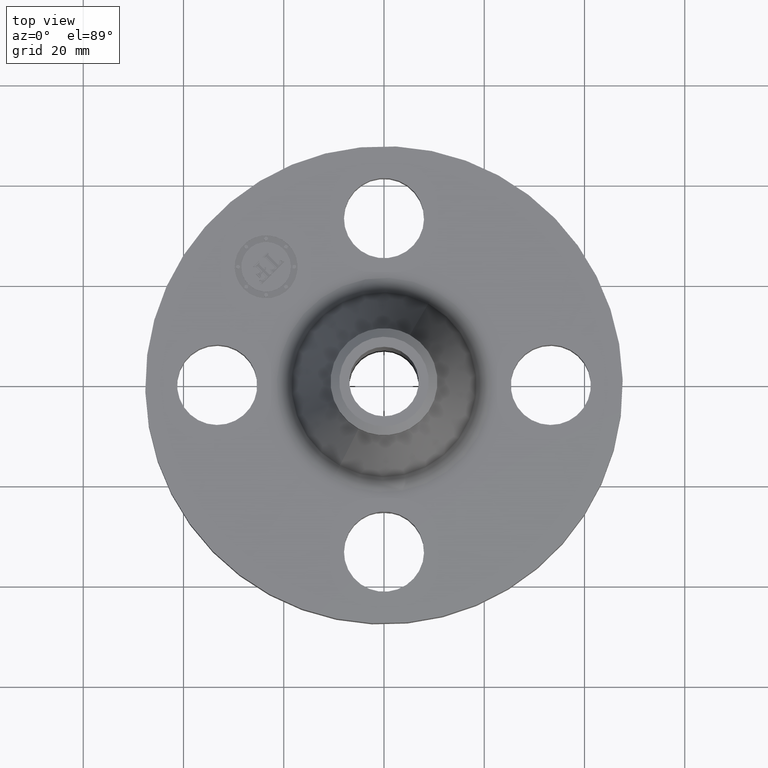
[diagram: clean part render]
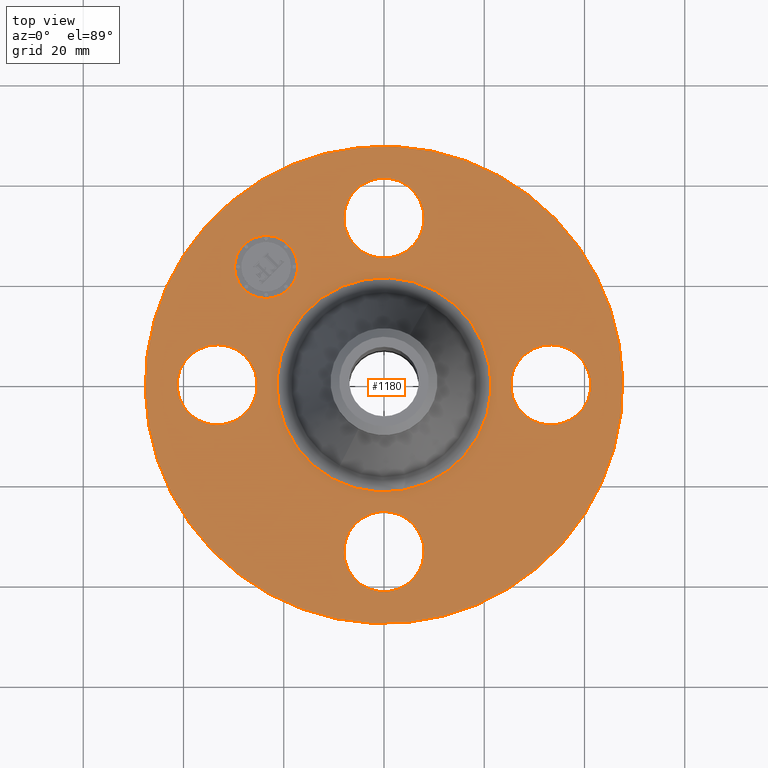
[diagram: same view with one face highlighted and labeled with its STEP entity id]
A machine part, top view. The second image highlights one B-rep face of the part: STEP entity #1180.
In plain terms, the highlighted planar face has unit normal (0, 0, -1).
Its self-contained STEP definition (entity closure, byte-faithful):
#65=AXIS2_PLACEMENT_3D('Circle Axis2P3D',#63,#64,$) ;
#118=AXIS2_PLACEMENT_3D('Circle Axis2P3D',#116,#117,$) ;
#193=AXIS2_PLACEMENT_3D('Circle Axis2P3D',#191,#192,$) ;
#217=AXIS2_PLACEMENT_3D('Circle Axis2P3D',#215,#216,$) ;
#234=AXIS2_PLACEMENT_3D('Circle Axis2P3D',#232,#233,$) ;
#269=AXIS2_PLACEMENT_3D('Circle Axis2P3D',#267,#268,$) ;
#758=AXIS2_PLACEMENT_3D('Circle Axis2P3D',#756,#757,$) ;
#775=AXIS2_PLACEMENT_3D('Circle Axis2P3D',#773,#774,$) ;
#810=AXIS2_PLACEMENT_3D('Circle Axis2P3D',#808,#809,$) ;
#827=AXIS2_PLACEMENT_3D('Circle Axis2P3D',#825,#826,$) ;
#862=AXIS2_PLACEMENT_3D('Circle Axis2P3D',#860,#861,$) ;
#879=AXIS2_PLACEMENT_3D('Circle Axis2P3D',#877,#878,$) ;
#1136=AXIS2_PLACEMENT_3D('Plane Axis2P3D',#1133,#1134,#1135) ;
#1164=AXIS2_PLACEMENT_3D('Circle Axis2P3D',#1162,#1163,$) ;
#1173=AXIS2_PLACEMENT_3D('Circle Axis2P3D',#1171,#1172,$) ;
#46=CARTESIAN_POINT('Vertex',(-0.276438506997,1.46101904467,0.500000000002)) ;
#60=CARTESIAN_POINT('Vertex',(0.276438506997,1.15898095534,0.500000000002)) ;
#63=CARTESIAN_POINT('Axis2P3D Location',(0.,1.31000000001,0.500000000002)) ;
#116=CARTESIAN_POINT('Axis2P3D Location',(0.,1.31000000001,0.500000000002)) ;
#188=CARTESIAN_POINT('Vertex',(-0.898922884886,-1.64546730355,0.500000000002)) ;
#191=CARTESIAN_POINT('Axis2P3D Location',(0.,0.,0.500000000002)) ;
#195=CARTESIAN_POINT('Vertex',(0.898922884886,1.64546730355,0.500000000002)) ;
#215=CARTESIAN_POINT('Axis2P3D Location',(0.,0.,0.500000000002)) ;
#232=CARTESIAN_POINT('Axis2P3D Location',(0.,0.,0.500000000002)) ;
#236=CARTESIAN_POINT('Vertex',(0.403524524561,0.738646687619,0.500000000002)) ;
#238=CARTESIAN_POINT('Vertex',(-0.403524524561,-0.738646687619,0.500000000002)) ;
#267=CARTESIAN_POINT('Axis2P3D Location',(0.,0.,0.500000000002)) ;
#746=CARTESIAN_POINT('Vertex',(1.46101904467,0.276438506997,0.500000000002)) ;
#753=CARTESIAN_POINT('Vertex',(1.15898095534,-0.276438506997,0.500000000002)) ;
#756=CARTESIAN_POINT('Axis2P3D Location',(1.31000000001,-5.96562519311E-017,0.500000000002)) ;
#773=CARTESIAN_POINT('Axis2P3D Location',(1.31000000001,-5.96562519311E-017,0.500000000002)) ;
#798=CARTESIAN_POINT('Vertex',(0.276438506997,-1.46101904467,0.500000000002)) ;
#805=CARTESIAN_POINT('Vertex',(-0.276438506997,-1.15898095534,0.500000000002)) ;
#808=CARTESIAN_POINT('Axis2P3D Location',(1.60428730689E-016,-1.31000000001,0.500000000002)) ;
#825=CARTESIAN_POINT('Axis2P3D Location',(1.60428730689E-016,-1.31000000001,0.500000000002)) ;
#850=CARTESIAN_POINT('Vertex',(-1.46101904467,-0.276438506997,0.500000000002)) ;
#857=CARTESIAN_POINT('Vertex',(-1.15898095534,0.276438506997,0.500000000002)) ;
#860=CARTESIAN_POINT('Axis2P3D Location',(-1.31000000001,-1.00772478758E-016,0.500000000002)) ;
#877=CARTESIAN_POINT('Axis2P3D Location',(-1.31000000001,-1.00772478758E-016,0.500000000002)) ;
#1133=CARTESIAN_POINT('Axis2P3D Location',(0.,1.87500000001,0.500000000002)) ;
#1162=CARTESIAN_POINT('Axis2P3D Location',(-0.926309883358,0.926309883358,0.500000000002)) ;
#1166=CARTESIAN_POINT('Vertex',(-1.1013188117,0.751300955014,0.500000000002)) ;
#1168=CARTESIAN_POINT('Vertex',(-0.751300955014,1.1013188117,0.500000000002)) ;
#1171=CARTESIAN_POINT('Axis2P3D Location',(-0.926309883358,0.926309883358,0.500000000002)) ;
#64=DIRECTION('Axis2P3D Direction',(0.,-0.,-0.0393700787402)) ;
#117=DIRECTION('Axis2P3D Direction',(0.,-0.,-0.0393700787402)) ;
#192=DIRECTION('Axis2P3D Direction',(0.,0.,-0.0393700787402)) ;
#216=DIRECTION('Axis2P3D Direction',(0.,0.,-0.0393700787402)) ;
#233=DIRECTION('Axis2P3D Direction',(0.,0.,-0.0393700787402)) ;
#268=DIRECTION('Axis2P3D Direction',(0.,0.,-0.0393700787402)) ;
#757=DIRECTION('Axis2P3D Direction',(0.,-0.,-0.0393700787402)) ;
#774=DIRECTION('Axis2P3D Direction',(0.,-0.,-0.0393700787402)) ;
#809=DIRECTION('Axis2P3D Direction',(-0.,0.,-0.0393700787402)) ;
#826=DIRECTION('Axis2P3D Direction',(-0.,0.,-0.0393700787402)) ;
#861=DIRECTION('Axis2P3D Direction',(0.,0.,-0.0393700787402)) ;
#878=DIRECTION('Axis2P3D Direction',(0.,0.,-0.0393700787402)) ;
#1134=DIRECTION('Axis2P3D Direction',(0.,0.,-0.0393700787402)) ;
#1135=DIRECTION('Axis2P3D XDirection',(0.0393700787402,0.,0.)) ;
#1163=DIRECTION('Axis2P3D Direction',(0.,0.,-0.0393700787402)) ;
#1172=DIRECTION('Axis2P3D Direction',(0.,0.,-0.0393700787402)) ;
#1139=ORIENTED_EDGE('',*,*,#219,.F.) ;
#1140=ORIENTED_EDGE('',*,*,#197,.F.) ;
#1143=ORIENTED_EDGE('',*,*,#67,.T.) ;
#1144=ORIENTED_EDGE('',*,*,#120,.T.) ;
#1147=ORIENTED_EDGE('',*,*,#271,.T.) ;
#1148=ORIENTED_EDGE('',*,*,#240,.T.) ;
#1151=ORIENTED_EDGE('',*,*,#777,.T.) ;
#1152=ORIENTED_EDGE('',*,*,#760,.T.) ;
#1155=ORIENTED_EDGE('',*,*,#829,.T.) ;
#1156=ORIENTED_EDGE('',*,*,#812,.T.) ;
#1159=ORIENTED_EDGE('',*,*,#881,.T.) ;
#1160=ORIENTED_EDGE('',*,*,#864,.T.) ;
#1177=ORIENTED_EDGE('',*,*,#1170,.T.) ;
#1178=ORIENTED_EDGE('',*,*,#1175,.T.) ;
#1145=FACE_BOUND('',#1142,.T.) ;
#1149=FACE_BOUND('',#1146,.T.) ;
#1153=FACE_BOUND('',#1150,.T.) ;
#1157=FACE_BOUND('',#1154,.T.) ;
#1161=FACE_BOUND('',#1158,.T.) ;
#1179=FACE_BOUND('',#1176,.T.) ;
#1180=ADVANCED_FACE('PartBody',(#1141,#1145,#1149,#1153,#1157,#1161,#1179),#1137,.F.) ;
#66=CIRCLE('generated circle',#65,0.315000000001) ;
#119=CIRCLE('generated circle',#118,0.315000000001) ;
#194=CIRCLE('generated circle',#193,1.87500000001) ;
#218=CIRCLE('generated circle',#217,1.87500000001) ;
#235=CIRCLE('generated circle',#234,0.84168341498) ;
#270=CIRCLE('generated circle',#269,0.84168341498) ;
#759=CIRCLE('generated circle',#758,0.315000000001) ;
#776=CIRCLE('generated circle',#775,0.315000000001) ;
#811=CIRCLE('generated circle',#810,0.315000000001) ;
#828=CIRCLE('generated circle',#827,0.315000000001) ;
#863=CIRCLE('generated circle',#862,0.315000000001) ;
#880=CIRCLE('generated circle',#879,0.315000000001) ;
#1165=CIRCLE('generated circle',#1164,0.247500000001) ;
#1174=CIRCLE('generated circle',#1173,0.247500000001) ;
#67=EDGE_CURVE('',#47,#61,#66,.T.) ;
#120=EDGE_CURVE('',#61,#47,#119,.T.) ;
#197=EDGE_CURVE('',#189,#196,#194,.T.) ;
#219=EDGE_CURVE('',#196,#189,#218,.T.) ;
#240=EDGE_CURVE('',#237,#239,#235,.T.) ;
#271=EDGE_CURVE('',#239,#237,#270,.T.) ;
#760=EDGE_CURVE('',#747,#754,#759,.T.) ;
#777=EDGE_CURVE('',#754,#747,#776,.T.) ;
#812=EDGE_CURVE('',#799,#806,#811,.T.) ;
#829=EDGE_CURVE('',#806,#799,#828,.T.) ;
#864=EDGE_CURVE('',#851,#858,#863,.T.) ;
#881=EDGE_CURVE('',#858,#851,#880,.T.) ;
#1170=EDGE_CURVE('',#1167,#1169,#1165,.T.) ;
#1175=EDGE_CURVE('',#1169,#1167,#1174,.T.) ;
#1138=EDGE_LOOP('',(#1139,#1140)) ;
#1142=EDGE_LOOP('',(#1143,#1144)) ;
#1146=EDGE_LOOP('',(#1147,#1148)) ;
#1150=EDGE_LOOP('',(#1151,#1152)) ;
#1154=EDGE_LOOP('',(#1155,#1156)) ;
#1158=EDGE_LOOP('',(#1159,#1160)) ;
#1176=EDGE_LOOP('',(#1177,#1178)) ;
#1141=FACE_OUTER_BOUND('',#1138,.T.) ;
#1137=PLANE('',#1136) ;
#47=VERTEX_POINT('',#46) ;
#61=VERTEX_POINT('',#60) ;
#189=VERTEX_POINT('',#188) ;
#196=VERTEX_POINT('',#195) ;
#237=VERTEX_POINT('',#236) ;
#239=VERTEX_POINT('',#238) ;
#747=VERTEX_POINT('',#746) ;
#754=VERTEX_POINT('',#753) ;
#799=VERTEX_POINT('',#798) ;
#806=VERTEX_POINT('',#805) ;
#851=VERTEX_POINT('',#850) ;
#858=VERTEX_POINT('',#857) ;
#1167=VERTEX_POINT('',#1166) ;
#1169=VERTEX_POINT('',#1168) ;